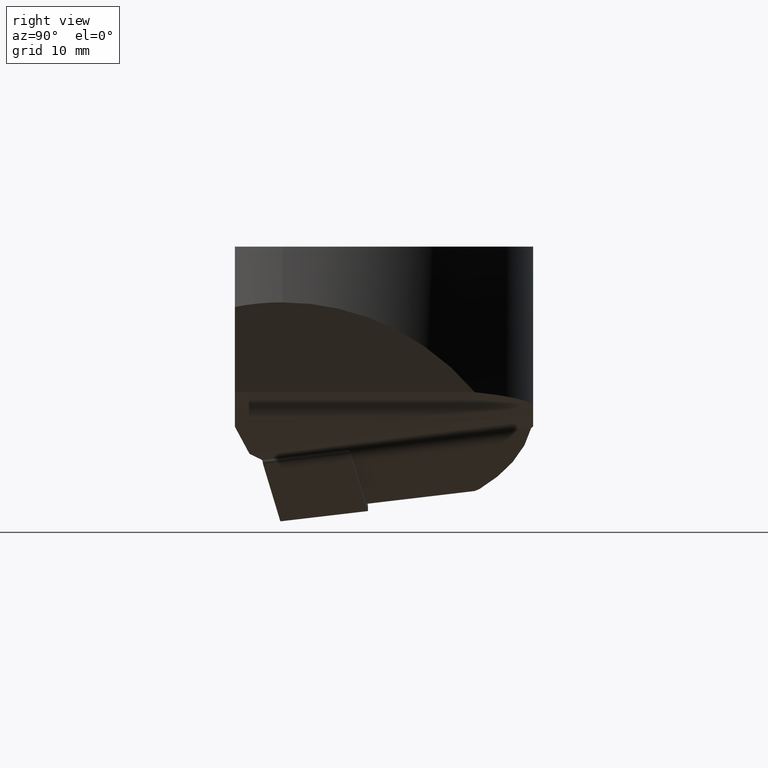
[diagram: clean part render]
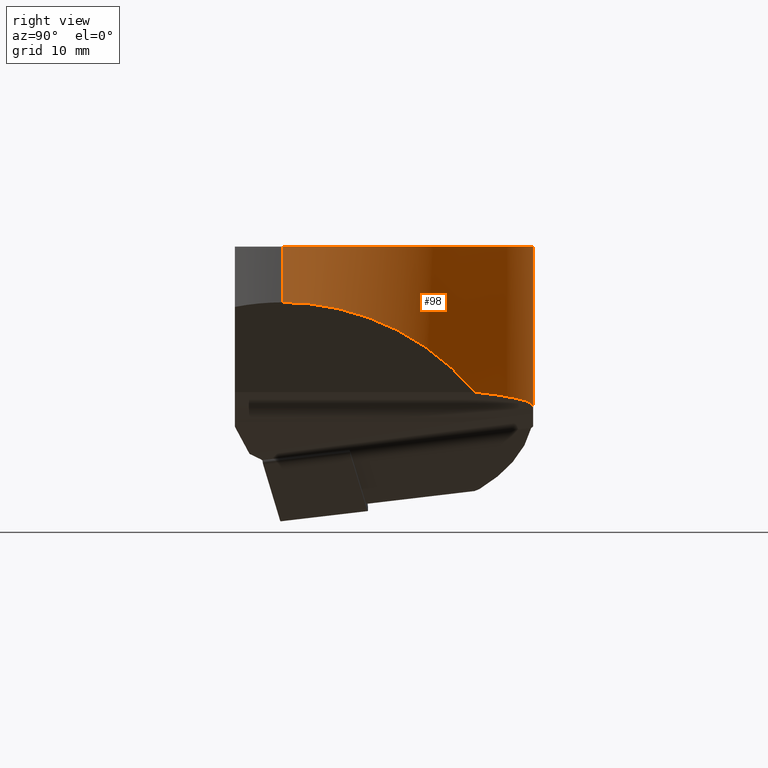
[diagram: same view with one face highlighted and labeled with its STEP entity id]
A machine part, right view. The second image highlights one B-rep face of the part: STEP entity #98.
In plain terms, the highlighted cylindrical surface (partial cylindrical patch) has radius 31.5 mm, axis along (-0, -0, 1).
Its self-contained STEP definition (entity closure, byte-faithful):
#98=ADVANCED_FACE('',(#154),#155,.T.);
#154=FACE_OUTER_BOUND('',#218,.T.);
#155=CYLINDRICAL_SURFACE('',#219,31.5);
#218=EDGE_LOOP('',(#423,#424,#425,#426,#427,#428,#429,#430));
#219=AXIS2_PLACEMENT_3D('',#431,#432,#433);
#423=ORIENTED_EDGE('',*,*,#574,.F.);
#424=ORIENTED_EDGE('',*,*,#575,.F.);
#425=ORIENTED_EDGE('',*,*,#570,.F.);
#426=ORIENTED_EDGE('',*,*,#576,.F.);
#427=ORIENTED_EDGE('',*,*,#577,.T.);
#428=ORIENTED_EDGE('',*,*,#561,.T.);
#429=ORIENTED_EDGE('',*,*,#565,.T.);
#430=ORIENTED_EDGE('',*,*,#569,.T.);
#431=CARTESIAN_POINT('',(1.22124532708767E-014,4.44089209850063E-015,-4.06702151976236));
#432=DIRECTION('',(-0.0,-0.0,1.0));
#433=DIRECTION('',(0.0,-1.0,0.0));
#561=EDGE_CURVE('',#687,#685,#688,.T.);
#565=EDGE_CURVE('',#685,#692,#694,.T.);
#569=EDGE_CURVE('',#692,#698,#700,.T.);
#570=EDGE_CURVE('',#701,#702,#703,.T.);
#574=EDGE_CURVE('',#709,#698,#710,.T.);
#575=EDGE_CURVE('',#702,#709,#711,.T.);
#576=EDGE_CURVE('',#712,#701,#713,.T.);
#577=EDGE_CURVE('',#712,#687,#714,.T.);
#685=VERTEX_POINT('',#904);
#687=VERTEX_POINT('',#906);
#688=B_SPLINE_CURVE_WITH_KNOTS('',3,(#907,#908,#909,#910,#911,#912,#913,#914),.UNSPECIFIED.,.F.,.F.,(4,2,2,4),(34.5192249948421,34.6865026905277,36.5950476753527,37.7222472083368),.UNSPECIFIED.);
#692=VERTEX_POINT('',#919);
#694=LINE('',#930,#931);
#698=VERTEX_POINT('',#936);
#700=CIRCLE('',#939,31.5);
#701=VERTEX_POINT('',#940);
#702=VERTEX_POINT('',#941);
#703=LINE('',#942,#943);
#709=VERTEX_POINT('',#950);
#710=LINE('',#951,#952);
#711=CIRCLE('',#953,31.5);
#712=VERTEX_POINT('',#954);
#713=ELLIPSE('',#955,44.5477272147525,31.5);
#714=ELLIPSE('',#956,31.6203248826154,31.5);
#904=CARTESIAN_POINT('',(0.0,31.5,-20.3350832689629));
#906=CARTESIAN_POINT('',(3.2568851450468,31.3311777492001,-19.7761060381651));
#907=CARTESIAN_POINT('',(3.2568851450468,31.3311777492001,-19.7761060381651));
#908=CARTESIAN_POINT('',(3.2004619526019,31.3370429566552,-19.781042427864));
#909=CARTESIAN_POINT('',(3.1439961596822,31.3427585226833,-19.7862240671884));
#910=CARTESIAN_POINT('',(2.4428140565868,31.4118178551001,-19.8535835601211));
#911=CARTESIAN_POINT('',(1.79317133802311,31.4556032448885,-19.9477258721226));
#912=CARTESIAN_POINT('',(0.762483632227294,31.4930988420898,-20.1501772897238));
#913=CARTESIAN_POINT('',(0.380311468236002,31.5,-20.2368872701063));
#914=CARTESIAN_POINT('',(0.0,31.5,-20.3350832689629));
#919=CARTESIAN_POINT('',(0.0,31.5,-5.0));
#930=CARTESIAN_POINT('',(0.0,31.5,-20.3350832689629));
#931=VECTOR('',#1075,15.3350832689629);
#936=CARTESIAN_POINT('',(-31.5,3.85751E-015,-5.0));
#939=AXIS2_PLACEMENT_3D('',#1081,#1082,#1083);
#940=CARTESIAN_POINT('',(31.5,-3.85751E-015,-6.99999999999999));
#941=CARTESIAN_POINT('',(31.5,-3.85751E-015,0.0));
#942=CARTESIAN_POINT('',(31.5,-3.85751E-015,-6.99999999999999));
#943=VECTOR('',#1084,6.99999999999999);
#950=CARTESIAN_POINT('',(-31.5,3.85751E-015,0.0));
#951=CARTESIAN_POINT('',(-31.5,3.85751E-015,0.0));
#952=VECTOR('',#1092,5.0);
#953=AXIS2_PLACEMENT_3D('',#1093,#1094,#1095);
#954=CARTESIAN_POINT('',(20.2068212154876,24.164734146382,-18.2931787845124));
#955=AXIS2_PLACEMENT_3D('',#1096,#1097,#1098);
#956=AXIS2_PLACEMENT_3D('',#1099,#1100,#1101);
#1075=DIRECTION('',(0.0,0.0,1.0));
#1081=CARTESIAN_POINT('',(0.0,1.608123E-015,-5.0));
#1082=DIRECTION('',(0.0,0.0,1.0));
#1083=DIRECTION('',(-1.0,0.0,0.0));
#1084=DIRECTION('',(0.0,0.0,1.0));
#1092=DIRECTION('',(0.0,0.0,-1.0));
#1093=CARTESIAN_POINT('',(0.0,-6.123234E-016,0.0));
#1094=DIRECTION('',(0.0,0.0,1.0));
#1095=DIRECTION('',(-1.0,0.0,0.0));
#1096=CARTESIAN_POINT('',(0.0,1.648511E-014,-38.5));
#1097=DIRECTION('',(0.707106781186548,8.59340999999999E-017,-0.707106781186548));
#1098=DIRECTION('',(-0.707106781186548,2.274258E-016,-0.707106781186548));
#1099=CARTESIAN_POINT('',(0.0,-5.012655E-015,-20.0610465667627));
#1100=DIRECTION('',(-0.087155742747658,-3.882801E-017,0.996194698091746));
#1101=DIRECTION('',(0.996194698091746,1.41112E-016,0.087155742747658));